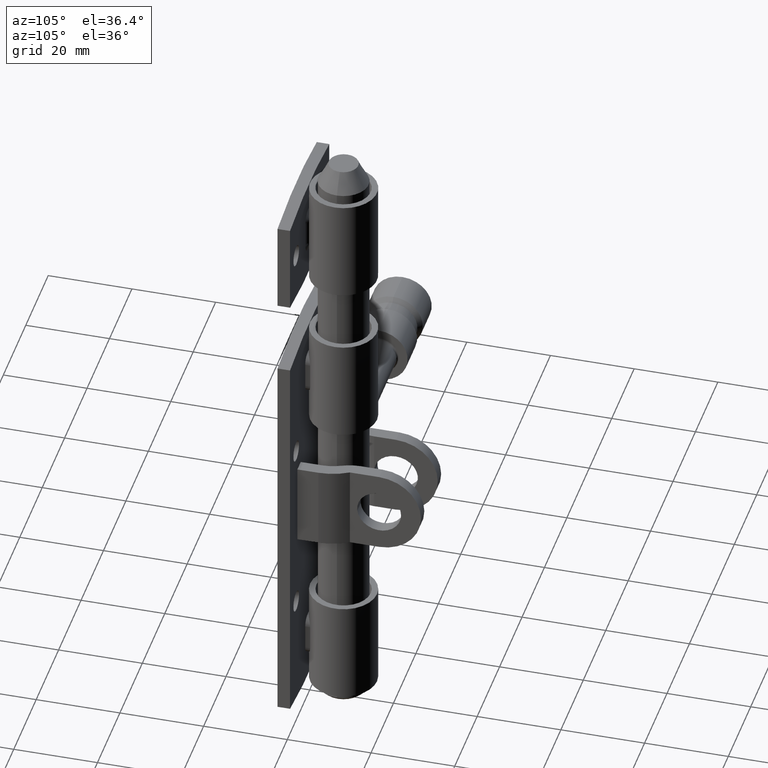
[diagram: clean part render]
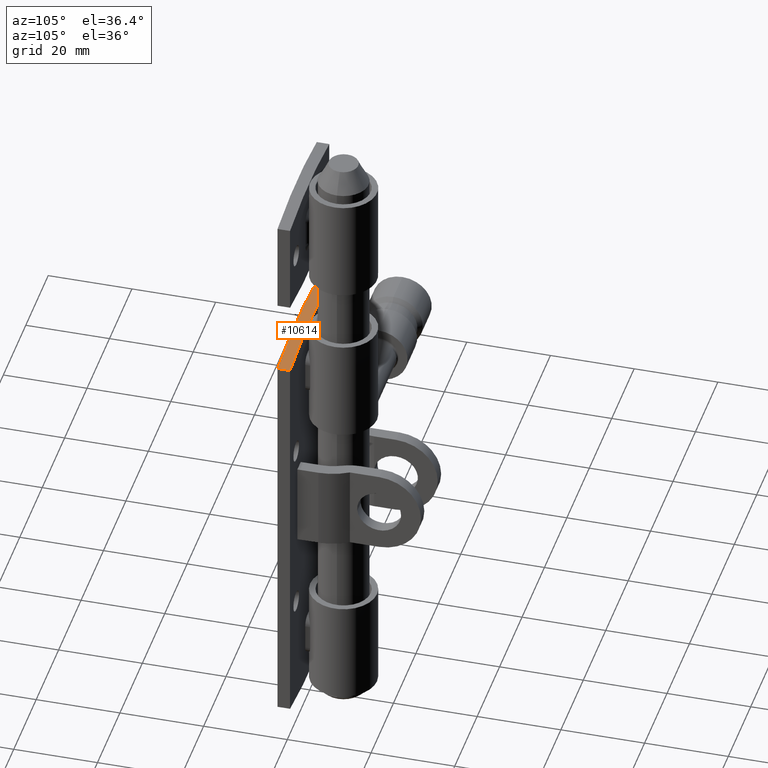
[diagram: same view with one face highlighted and labeled with its STEP entity id]
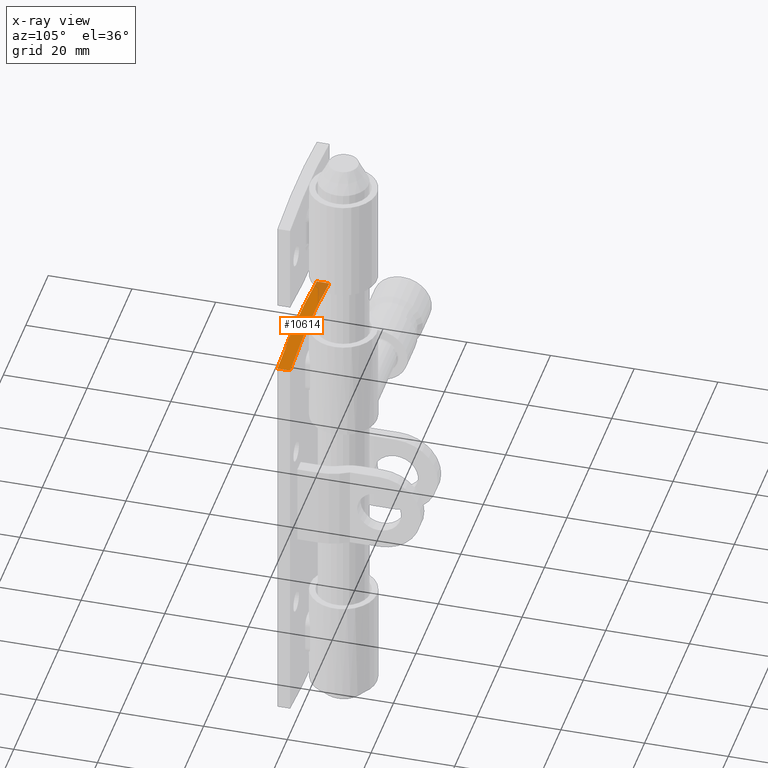
[diagram: x-ray of the same camera — body ghosted, the highlighted face saturated]
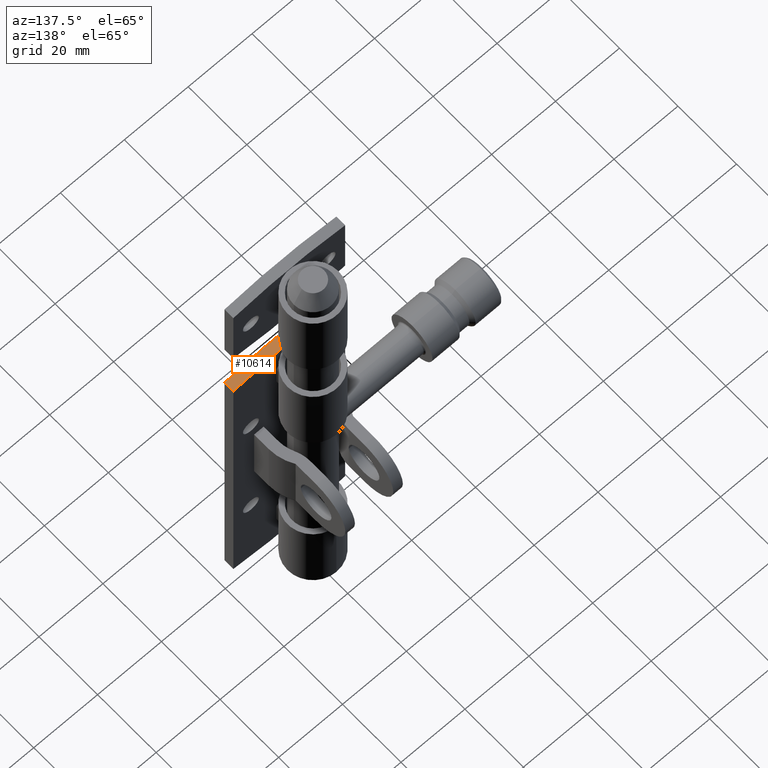
[diagram: same view with one face highlighted and labeled with its STEP entity id]
A machine part, auxiliary view. The second image highlights one B-rep face of the part: STEP entity #10614.
The next image is the same camera in x-ray: the body ghosted, the highlighted face saturated — about 11% of this face is hidden behind the body in this view.
A second angle (auxiliary view) of the same face is appended — the face is thin or edge-on in the first view.
In plain terms, the highlighted cylindrical surface (partial cylindrical patch) has radius 102.833 mm, axis along (0, 1, 0).
Its self-contained STEP definition (entity closure, byte-faithful):
#13 = DIRECTION ( 'NONE',  ( 0.000000000000000000, 0.000000000000000000, 1.000000000000000000 ) ) ;
#295 = VERTEX_POINT ( 'NONE', #7303 ) ;
#425 = VECTOR ( 'NONE', #5684, 1000.000000000000000 ) ;
#638 = CARTESIAN_POINT ( 'NONE',  ( 8.429652134130940764E-15, -3.000000000000000000, -52.83333333333337123 ) ) ;
#1077 = CARTESIAN_POINT ( 'NONE',  ( 8.429652134130940764E-15, 0.000000000000000000, -52.83333333333337123 ) ) ;
#1328 = EDGE_CURVE ( 'NONE', #295, #8710, #3885, .T. ) ;
#1410 = EDGE_LOOP ( 'NONE', ( #8885, #14542, #4773, #7067 ) ) ;
#1571 = DIRECTION ( 'NONE',  ( 0.000000000000000000, 0.000000000000000000, 1.000000000000000000 ) ) ;
#2068 = FACE_OUTER_BOUND ( 'NONE', #1410, .T. ) ;
#2847 = CARTESIAN_POINT ( 'NONE',  ( 8.429652134130940764E-15, -3.000000000000000000, -52.83333333333337123 ) ) ;
#3138 = DIRECTION ( 'NONE',  ( 0.000000000000000000, 1.000000000000000000, 0.000000000000000000 ) ) ;
#3885 = LINE ( 'NONE', #12706, #13091 ) ;
#3976 = CIRCLE ( 'NONE', #5240, 102.8333333333333570 ) ;
#4663 = CARTESIAN_POINT ( 'NONE',  ( -17.50000000000002132, -3.000000000000000000, 48.50000000000000000 ) ) ;
#4773 = ORIENTED_EDGE ( 'NONE', *, *, #14849, .T. ) ;
#5240 = AXIS2_PLACEMENT_3D ( 'NONE', #1077, #8481, #13 ) ;
#5565 = EDGE_CURVE ( 'NONE', #14127, #8710, #3976, .T. ) ;
#5684 = DIRECTION ( 'NONE',  ( 0.000000000000000000, 1.000000000000000000, 0.000000000000000000 ) ) ;
#6196 = AXIS2_PLACEMENT_3D ( 'NONE', #638, #3138, #11323 ) ;
#7067 = ORIENTED_EDGE ( 'NONE', *, *, #1328, .T. ) ;
#7303 = CARTESIAN_POINT ( 'NONE',  ( 17.49999999999995737, -3.000000000000000000, 48.49999999999998579 ) ) ;
#7799 = DIRECTION ( 'NONE',  ( 0.000000000000000000, 1.000000000000000000, 0.000000000000000000 ) ) ;
#7919 = CYLINDRICAL_SURFACE ( 'NONE', #12543, 102.8333333333333570 ) ;
#8481 = DIRECTION ( 'NONE',  ( 0.000000000000000000, 1.000000000000000000, 0.000000000000000000 ) ) ;
#8710 = VERTEX_POINT ( 'NONE', #11964 ) ;
#8885 = ORIENTED_EDGE ( 'NONE', *, *, #5565, .F. ) ;
#9447 = LINE ( 'NONE', #11602, #425 ) ;
#9695 = EDGE_CURVE ( 'NONE', #13610, #14127, #9447, .T. ) ;
#10614 = ADVANCED_FACE ( 'NONE', ( #2068 ), #7919, .T. ) ;
#11095 = CARTESIAN_POINT ( 'NONE',  ( -17.50000000000002132, 0.000000000000000000, 48.50000000000000000 ) ) ;
#11136 = CIRCLE ( 'NONE', #6196, 102.8333333333333570 ) ;
#11323 = DIRECTION ( 'NONE',  ( 0.000000000000000000, 0.000000000000000000, 1.000000000000000000 ) ) ;
#11602 = CARTESIAN_POINT ( 'NONE',  ( -17.50000000000002132, -3.000000000000000000, 48.50000000000000000 ) ) ;
#11964 = CARTESIAN_POINT ( 'NONE',  ( 17.49999999999995737, 0.000000000000000000, 48.49999999999998579 ) ) ;
#12543 = AXIS2_PLACEMENT_3D ( 'NONE', #2847, #7799, #1571 ) ;
#12706 = CARTESIAN_POINT ( 'NONE',  ( 17.49999999999995737, -3.000000000000000000, 48.49999999999998579 ) ) ;
#12859 = DIRECTION ( 'NONE',  ( 0.000000000000000000, 1.000000000000000000, 0.000000000000000000 ) ) ;
#13091 = VECTOR ( 'NONE', #12859, 1000.000000000000000 ) ;
#13610 = VERTEX_POINT ( 'NONE', #4663 ) ;
#14127 = VERTEX_POINT ( 'NONE', #11095 ) ;
#14542 = ORIENTED_EDGE ( 'NONE', *, *, #9695, .F. ) ;
#14849 = EDGE_CURVE ( 'NONE', #13610, #295, #11136, .T. ) ;